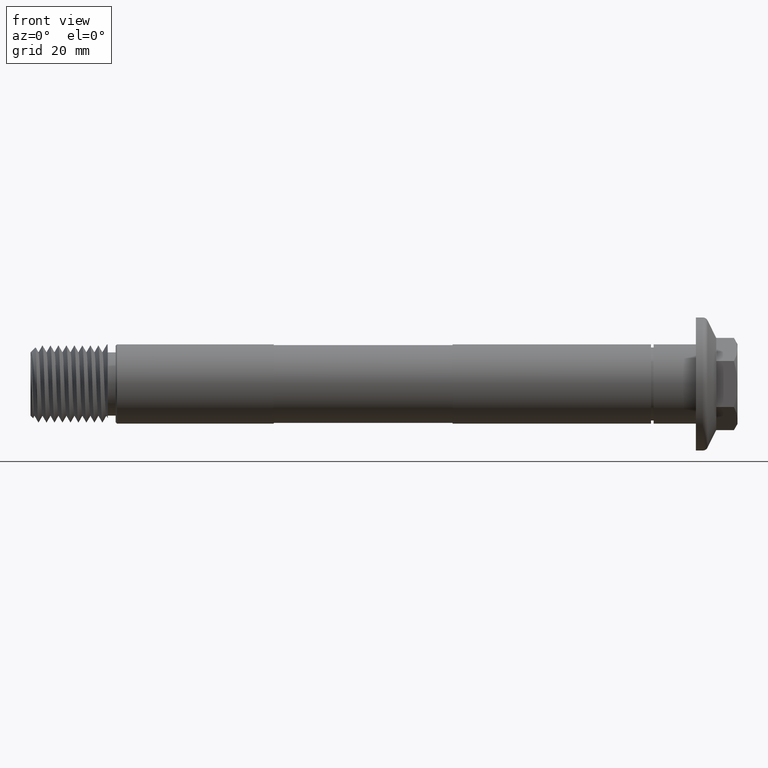
[diagram: clean part render]
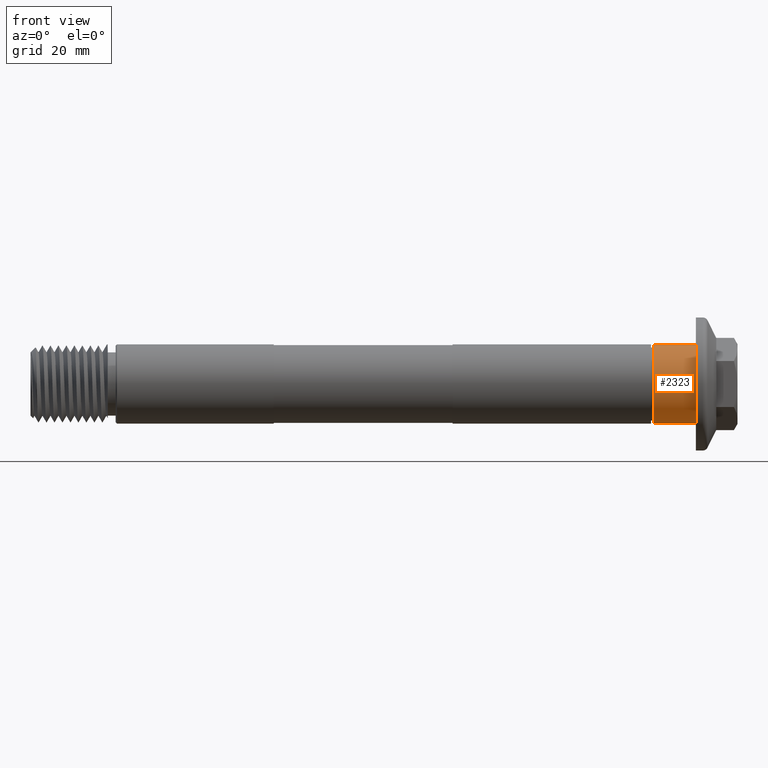
[diagram: same view with one face highlighted and labeled with its STEP entity id]
A machine part, front view. The second image highlights one B-rep face of the part: STEP entity #2323.
In plain terms, the highlighted cylindrical surface (partial cylindrical patch) has radius 7.4549 mm, axis along (-1, -0, -0).
Its self-contained STEP definition (entity closure, byte-faithful):
#156 = EDGE_CURVE ( 'NONE', #868, #261, #3062, .T. ) ;
#231 = EDGE_CURVE ( 'NONE', #517, #2543, #449, .T. ) ;
#261 = VERTEX_POINT ( 'NONE', #487 ) ;
#310 = ORIENTED_EDGE ( 'NONE', *, *, #3088, .F. ) ;
#383 = CIRCLE ( 'NONE', #1148, 7.454899999999999416 ) ;
#449 = LINE ( 'NONE', #2544, #1461 ) ;
#487 = CARTESIAN_POINT ( 'NONE',  ( 117.0600000000000165, 9.129619422963602844E-16, -7.454899999999999416 ) ) ;
#517 = VERTEX_POINT ( 'NONE', #905 ) ;
#527 = AXIS2_PLACEMENT_3D ( 'NONE', #1007, #3388, #2060 ) ;
#661 = DIRECTION ( 'NONE',  ( 0.000000000000000000, 0.000000000000000000, -1.000000000000000000 ) ) ;
#670 = CIRCLE ( 'NONE', #1062, 7.454899999999999416 ) ;
#722 = CARTESIAN_POINT ( 'NONE',  ( 125.0000000000000000, 9.129619422963602844E-16, -7.454899999999999416 ) ) ;
#730 = EDGE_CURVE ( 'NONE', #2543, #261, #670, .T. ) ;
#786 = EDGE_LOOP ( 'NONE', ( #2213, #310, #1779, #2124 ) ) ;
#868 = VERTEX_POINT ( 'NONE', #1661 ) ;
#905 = CARTESIAN_POINT ( 'NONE',  ( 125.0000000000000000, 0.000000000000000000, 7.454899999999999416 ) ) ;
#1007 = CARTESIAN_POINT ( 'NONE',  ( 125.0000000000000000, 0.000000000000000000, 0.000000000000000000 ) ) ;
#1062 = AXIS2_PLACEMENT_3D ( 'NONE', #2361, #2899, #3120 ) ;
#1148 = AXIS2_PLACEMENT_3D ( 'NONE', #3373, #2247, #661 ) ;
#1269 = DIRECTION ( 'NONE',  ( -1.000000000000000000, -0.000000000000000000, -0.000000000000000000 ) ) ;
#1461 = VECTOR ( 'NONE', #1269, 1000.000000000000000 ) ;
#1661 = CARTESIAN_POINT ( 'NONE',  ( 125.0000000000000000, 9.129619422963602844E-16, -7.454899999999999416 ) ) ;
#1779 = ORIENTED_EDGE ( 'NONE', *, *, #231, .T. ) ;
#1831 = CYLINDRICAL_SURFACE ( 'NONE', #527, 7.454899999999999416 ) ;
#2060 = DIRECTION ( 'NONE',  ( 0.000000000000000000, 0.000000000000000000, 1.000000000000000000 ) ) ;
#2061 = VECTOR ( 'NONE', #3079, 1000.000000000000000 ) ;
#2124 = ORIENTED_EDGE ( 'NONE', *, *, #730, .T. ) ;
#2148 = CARTESIAN_POINT ( 'NONE',  ( 117.0600000000000165, 0.000000000000000000, 7.454899999999999416 ) ) ;
#2213 = ORIENTED_EDGE ( 'NONE', *, *, #156, .F. ) ;
#2247 = DIRECTION ( 'NONE',  ( 1.000000000000000000, 0.000000000000000000, 0.000000000000000000 ) ) ;
#2323 = ADVANCED_FACE ( 'NONE', ( #3121 ), #1831, .T. ) ;
#2361 = CARTESIAN_POINT ( 'NONE',  ( 117.0600000000000165, 0.000000000000000000, 0.000000000000000000 ) ) ;
#2543 = VERTEX_POINT ( 'NONE', #2148 ) ;
#2544 = CARTESIAN_POINT ( 'NONE',  ( 125.0000000000000000, 0.000000000000000000, 7.454899999999999416 ) ) ;
#2899 = DIRECTION ( 'NONE',  ( 1.000000000000000000, 0.000000000000000000, 0.000000000000000000 ) ) ;
#3062 = LINE ( 'NONE', #722, #2061 ) ;
#3079 = DIRECTION ( 'NONE',  ( -1.000000000000000000, -0.000000000000000000, -0.000000000000000000 ) ) ;
#3088 = EDGE_CURVE ( 'NONE', #517, #868, #383, .T. ) ;
#3120 = DIRECTION ( 'NONE',  ( 0.000000000000000000, 0.000000000000000000, -1.000000000000000000 ) ) ;
#3121 = FACE_OUTER_BOUND ( 'NONE', #786, .T. ) ;
#3373 = CARTESIAN_POINT ( 'NONE',  ( 125.0000000000000000, 0.000000000000000000, 0.000000000000000000 ) ) ;
#3388 = DIRECTION ( 'NONE',  ( -1.000000000000000000, -0.000000000000000000, -0.000000000000000000 ) ) ;